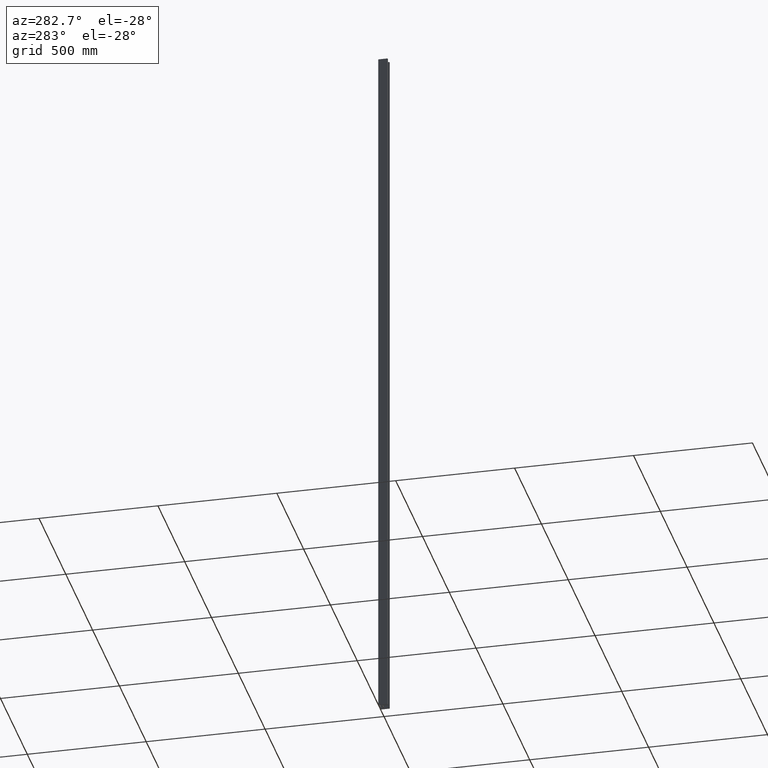
[diagram: clean part render]
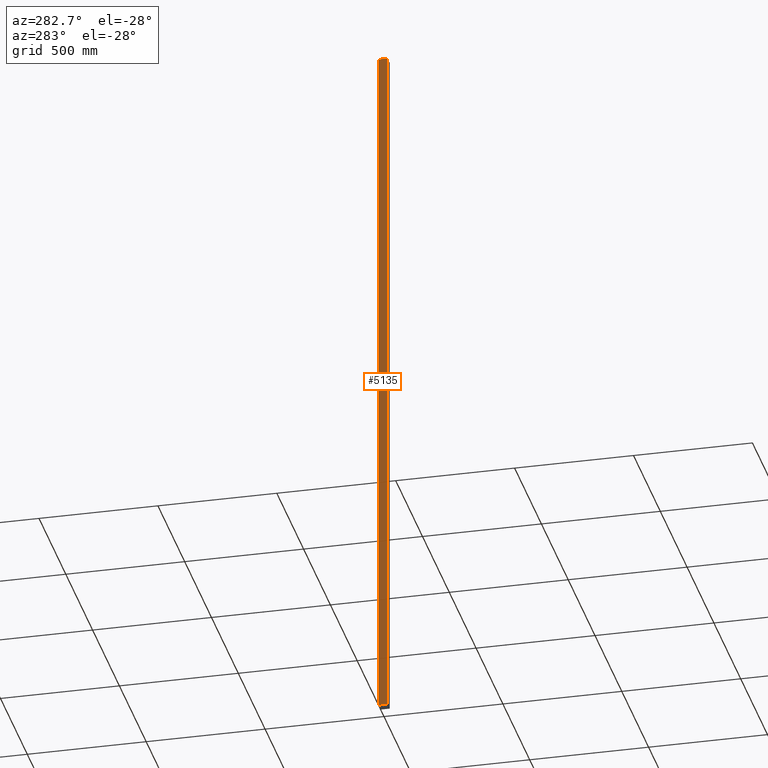
[diagram: same view with one face highlighted and labeled with its STEP entity id]
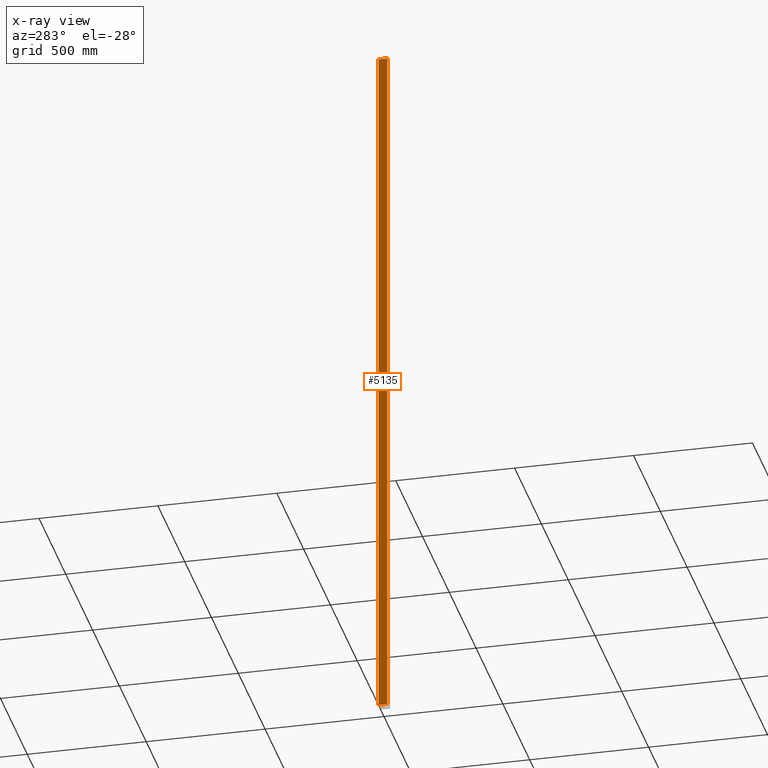
[diagram: x-ray of the same camera — body ghosted, the highlighted face saturated]
A machine part, auxiliary view. The second image highlights one B-rep face of the part: STEP entity #5135.
The next image is the same camera in x-ray: the body ghosted, the highlighted face saturated — about 0% of this face is hidden behind the body in this view.
In plain terms, the highlighted planar face has unit normal (1, 0, -0).
Its self-contained STEP definition (entity closure, byte-faithful):
#526 = VECTOR ( 'NONE', #11964, 1000.000000000000000 ) ;
#694 = CARTESIAN_POINT ( 'NONE',  ( -20.00000000000000711, 18.00000000000001066, 1500.000000000000000 ) ) ;
#1804 = ORIENTED_EDGE ( 'NONE', *, *, #15138, .T. ) ;
#1898 = ORIENTED_EDGE ( 'NONE', *, *, #5261, .F. ) ;
#2588 = VECTOR ( 'NONE', #14157, 1000.000000000000000 ) ;
#2627 = LINE ( 'NONE', #11074, #3794 ) ;
#2697 = VERTEX_POINT ( 'NONE', #8236 ) ;
#3794 = VECTOR ( 'NONE', #9771, 1000.000000000000000 ) ;
#3917 = PLANE ( 'NONE',  #10043 ) ;
#4275 = EDGE_CURVE ( 'NONE', #2697, #5053, #7879, .T. ) ;
#4604 = EDGE_LOOP ( 'NONE', ( #1804, #1898, #10291, #7242 ) ) ;
#5028 = CARTESIAN_POINT ( 'NONE',  ( -20.00000000000001066, 18.00000000000001066, 1500.000000000000000 ) ) ;
#5053 = VERTEX_POINT ( 'NONE', #12736 ) ;
#5135 = ADVANCED_FACE ( 'NONE', ( #12420 ), #3917, .F. ) ;
#5261 = EDGE_CURVE ( 'NONE', #5053, #10734, #16036, .T. ) ;
#6266 = CARTESIAN_POINT ( 'NONE',  ( -20.00000000000000711, 18.00000000000001066, -1500.000000000000000 ) ) ;
#6343 = VECTOR ( 'NONE', #9674, 1000.000000000000000 ) ;
#6978 = CARTESIAN_POINT ( 'NONE',  ( -20.00000000000001066, -17.99999999999999645, -1500.000000000000000 ) ) ;
#7165 = VERTEX_POINT ( 'NONE', #6266 ) ;
#7242 = ORIENTED_EDGE ( 'NONE', *, *, #13135, .T. ) ;
#7879 = LINE ( 'NONE', #14838, #6343 ) ;
#8236 = CARTESIAN_POINT ( 'NONE',  ( -20.00000000000000711, 18.00000000000001066, 1500.000000000000000 ) ) ;
#9674 = DIRECTION ( 'NONE',  ( 0.000000000000000000, -1.000000000000000000, 0.000000000000000000 ) ) ;
#9771 = DIRECTION ( 'NONE',  ( 0.000000000000000000, -1.000000000000000000, 0.000000000000000000 ) ) ;
#10043 = AXIS2_PLACEMENT_3D ( 'NONE', #5028, #15308, #13943 ) ;
#10291 = ORIENTED_EDGE ( 'NONE', *, *, #4275, .F. ) ;
#10734 = VERTEX_POINT ( 'NONE', #6978 ) ;
#11074 = CARTESIAN_POINT ( 'NONE',  ( -20.00000000000001066, 18.00000000000001066, -1500.000000000000000 ) ) ;
#11964 = DIRECTION ( 'NONE',  ( -0.000000000000000000, -0.000000000000000000, -1.000000000000000000 ) ) ;
#12420 = FACE_OUTER_BOUND ( 'NONE', #4604, .T. ) ;
#12736 = CARTESIAN_POINT ( 'NONE',  ( -20.00000000000001066, -17.99999999999999645, 1500.000000000000000 ) ) ;
#13010 = CARTESIAN_POINT ( 'NONE',  ( -20.00000000000001066, -17.99999999999999645, 1500.000000000000000 ) ) ;
#13135 = EDGE_CURVE ( 'NONE', #2697, #7165, #15321, .T. ) ;
#13943 = DIRECTION ( 'NONE',  ( -0.000000000000000000, 0.000000000000000000, -1.000000000000000000 ) ) ;
#14157 = DIRECTION ( 'NONE',  ( -0.000000000000000000, -0.000000000000000000, -1.000000000000000000 ) ) ;
#14838 = CARTESIAN_POINT ( 'NONE',  ( -20.00000000000001066, 18.00000000000001066, 1500.000000000000000 ) ) ;
#15138 = EDGE_CURVE ( 'NONE', #7165, #10734, #2627, .T. ) ;
#15308 = DIRECTION ( 'NONE',  ( 1.000000000000000000, 0.000000000000000000, -0.000000000000000000 ) ) ;
#15321 = LINE ( 'NONE', #694, #526 ) ;
#16036 = LINE ( 'NONE', #13010, #2588 ) ;